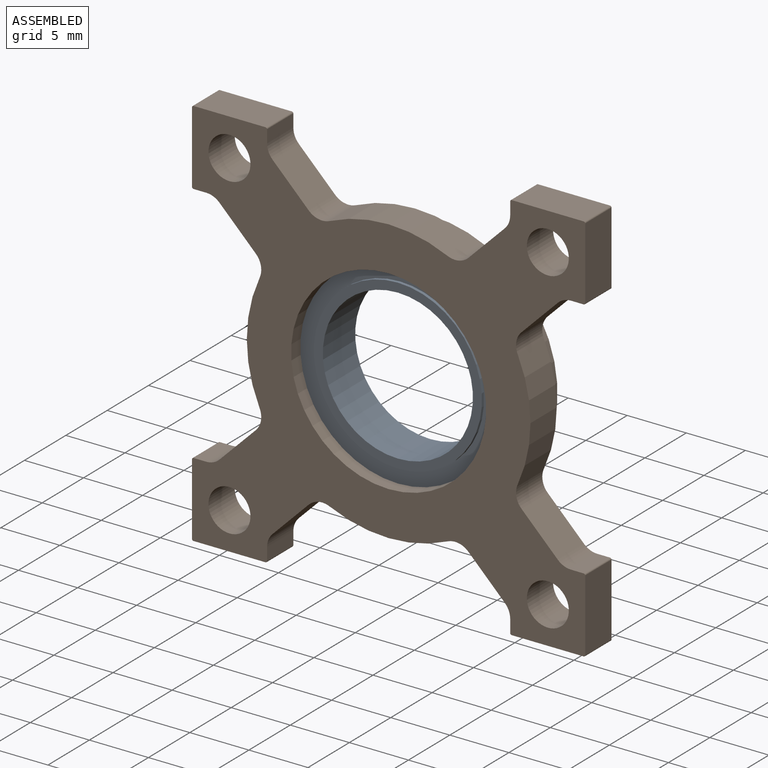
[diagram: assembled view]
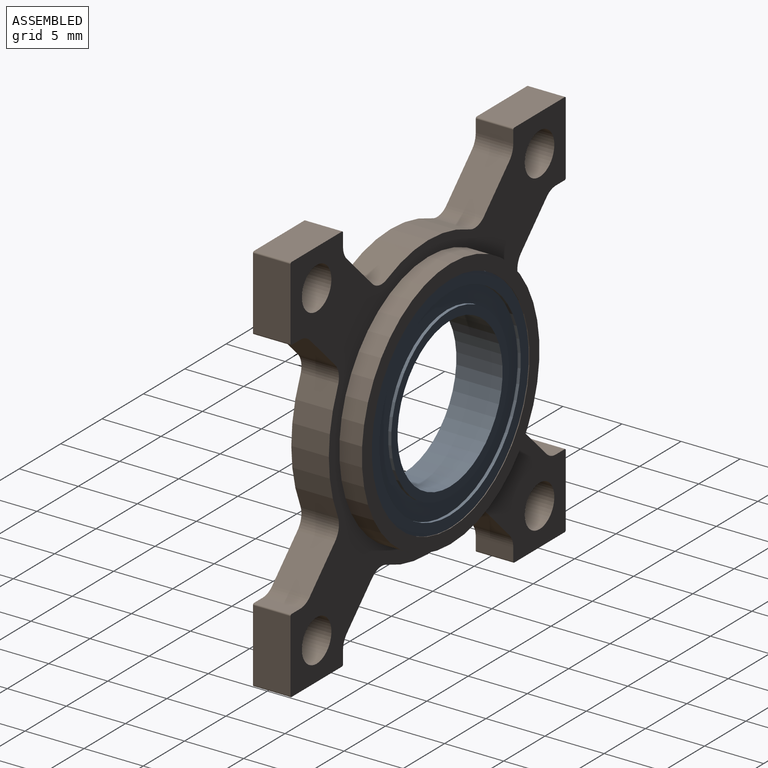
[diagram: assembled view, second angle]
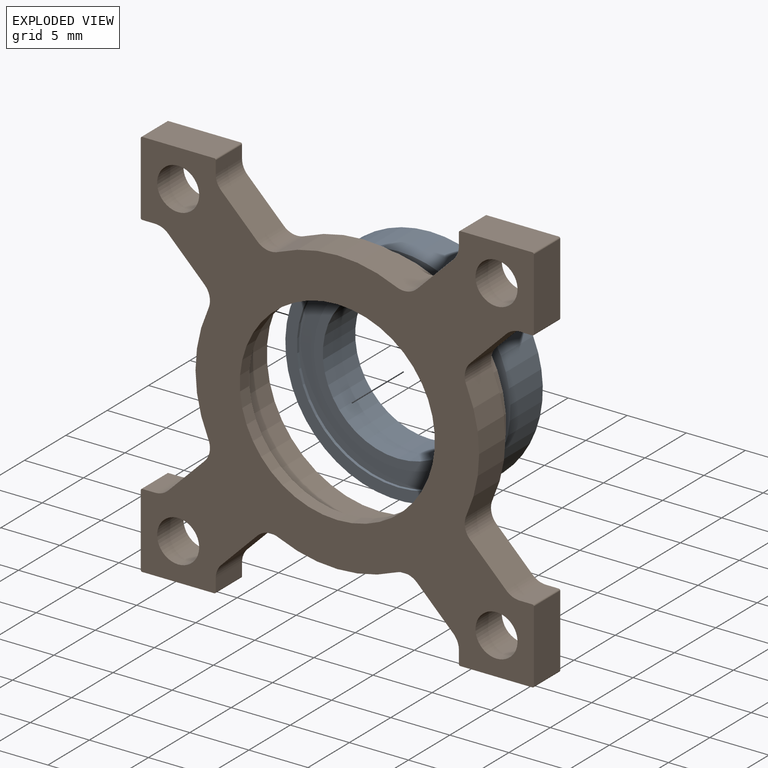
[diagram: exploded view]
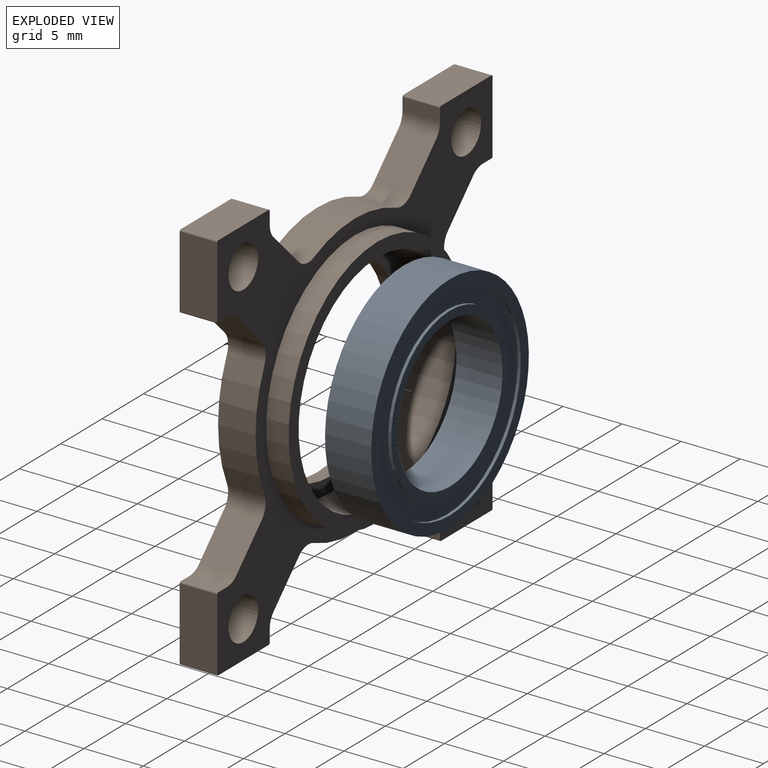
[diagram: exploded view, second angle]
ASSEMBLY  parts=2 mates=2
PART A: 12 faces, bbox 19.1x3.9x19.1 mm
  f0: cylinder r=7.11mm len=14.22mm, axis (0,-1,0), area 11.4mm2, adj f6,f11
  f1: cylinder r=8.55mm len=17.09mm, axis (0,-1,0), area 13.6mm2, adj f9,f11
  f2: cylinder r=7.11mm len=14.22mm, axis (0,1,0), area 11.4mm2, adj f7,f10
  f3: cylinder r=8.55mm len=17.09mm, axis (0,1,0), area 13.6mm2, adj f8,f10
  f4: cylinder r=6.35mm len=12.7mm, axis (0,-1,0), area 156.1mm2, adj f6,f7
  f5: cylinder r=9.53mm len=19.05mm, axis (0,-1,0), area 234.1mm2, adj f8,f9
  f6: plane 14.22x14.22mm, normal (0,-1,0), area 32.2mm2, adj f0,f4
  f7: plane 14.22x14.22mm, normal (0,1,0), area 32.2mm2, adj f2,f4
  f8: plane 19.05x19.05mm, normal (0,1,0), area 55.5mm2, adj f3,f5
  f9: plane 19.05x19.05mm, normal (0,-1,0), area 55.5mm2, adj f1,f5
  f10: plane 17.09x17.09mm, normal (0,1,0), area 70.6mm2, adj f2,f3
  f11: plane 17.09x17.09mm, normal (0,-1,0), area 70.6mm2, adj f0,f1
PART B: 67 faces, bbox 33.3x5.1x33.3 mm
  f0: cylinder r=8.26mm len=16.51mm, axis (0,1,0), area 58mm2, adj f38,f66
  f1: cylinder r=9.53mm len=19.05mm, axis (0,-1,0), area 237.1mm2, adj f65,f66
  f2: cylinder r=10.73mm len=21.46mm, axis (0,-1,0), area 128.5mm2, adj f10,f65
  f3: cylinder r=1.59mm len=3.18mm, axis (0,-1,0), area 6.1mm2, adj f10,f23,f24,f38
  f4: cylinder r=1.59mm len=3.18mm, axis (0,-1,0), area 6.1mm2, adj f10,f22,f23,f38
  f5: cylinder r=1.78mm len=3.56mm, axis (0,1,0), area 35.5mm2, adj f10,f38
  f6: cylinder r=1.78mm len=3.56mm, axis (0,1,0), area 35.5mm2, adj f10,f38
  f7: cylinder r=1.78mm len=3.56mm, axis (0,1,0), area 35.5mm2, adj f10,f38
  f8: cylinder r=1.78mm len=3.56mm, axis (0,1,0), area 35.5mm2, adj f10,f38
  f9: cylinder r=12mm len=9.95mm, axis (0,-1,0), area 32.6mm2, adj f10,f38,f61,f62
  f10: plane 33.27x33.27mm, normal (0,1,0), area 323.2mm2, adj f2,f3,f4,f5,f6,f7,f8,f9
  f11: plane 3.18x1.08mm, normal (1,0,0), area 3.4mm2, adj f10,f38,f48,f54
  f12: plane 6.1x3.18mm, normal (0,0,-1), area 19.4mm2, adj f10,f38,f48,f49
  f13: plane 6.1x3.18mm, normal (-1,0,0), area 19.4mm2, adj f10,f38,f49,f50
  f14: plane 3.18x1.08mm, normal (0,0,1), area 3.4mm2, adj f10,f38,f50,f53
  f15: plane 3.18x3.07mm, normal (-0.71,0,0.71), area 13.8mm2, adj f10,f38,f53,f63
  f16: cylinder r=12mm len=9.95mm, axis (0,-1,0), area 32.6mm2, adj f10,f38,f63,f64
  f17: plane 3.18x3.07mm, normal (-0.71,0,-0.71), area 13.8mm2, adj f10,f38,f52,f64
  f18: plane 3.18x1.08mm, normal (0,0,-1), area 3.4mm2, adj f10,f38,f39,f52
  f19: plane 6.1x3.18mm, normal (-1,0,0), area 19.4mm2, adj f10,f38,f39,f40
  f20: plane 6.1x3.18mm, normal (0,0,1), area 19.4mm2, adj f10,f38,f40,f43
  f21: plane 3.18x1.08mm, normal (1,0,0), area 3.4mm2, adj f10,f38,f43,f51
  f22: plane 3.18x3.07mm, normal (0.71,0,0.71), area 13.8mm2, adj f4,f10,f38,f51
  f23: cylinder r=12mm len=9.95mm, axis (0,-1,0), area 32.6mm2, adj f3,f4,f10,f38
  f24: plane 3.18x3.07mm, normal (-0.71,0,0.71), area 13.8mm2, adj f3,f10,f38,f58
  f25: plane 3.18x1.08mm, normal (-1,0,0), area 3.4mm2, adj f10,f38,f41,f58
  f26: plane 6.1x3.18mm, normal (0,0,1), area 19.4mm2, adj f10,f38,f41,f44
  f27: plane 6.1x3.18mm, normal (1,0,0), area 19.4mm2, adj f10,f38,f44,f45
  f28: plane 3.18x1.08mm, normal (0,0,-1), area 3.4mm2, adj f10,f38,f45,f57
  f29: plane 3.18x3.07mm, normal (0.71,0,-0.71), area 13.8mm2, adj f10,f38,f57,f59
  f30: cylinder r=12mm len=9.95mm, axis (0,-1,0), area 32.6mm2, adj f10,f38,f59,f60
  f31: plane 3.18x3.07mm, normal (0.71,0,0.71), area 13.8mm2, adj f10,f38,f56,f60
  f32: plane 3.18x1.08mm, normal (0,0,1), area 3.4mm2, adj f10,f38,f46,f56
  f33: plane 6.1x3.18mm, normal (1,0,0), area 19.4mm2, adj f10,f38,f46,f47
  f34: plane 6.1x3.18mm, normal (0,0,-1), area 19.4mm2, adj f10,f38,f42,f47
  f35: plane 3.18x1.08mm, normal (-1,0,0), area 3.4mm2, adj f10,f38,f42,f55
  f36: plane 3.18x3.07mm, normal (-0.71,0,-0.71), area 13.8mm2, adj f10,f38,f55,f62
  f37: plane 3.18x3.07mm, normal (0.71,0,-0.71), area 13.8mm2, adj f10,f38,f54,f61
  f38: plane 33.27x33.27mm, normal (0,-1,0), area 470.9mm2, adj f0,f3,f4,f5,f6,f7,f8,f9
  f39: cylinder r=0.13mm len=3.18mm, axis (0,-1,0), area 0.6mm2, adj f10,f18,f19,f38
  f40: cylinder r=0.13mm len=3.18mm, axis (0,1,0), area 0.6mm2, adj f10,f19,f20,f38
  f41: cylinder r=0.13mm len=3.18mm, axis (0,1,0), area 0.6mm2, adj f10,f25,f26,f38
  f42: cylinder r=0.13mm len=3.18mm, axis (0,1,0), area 0.6mm2, adj f10,f34,f35,f38
  f43: cylinder r=0.13mm len=3.18mm, axis (0,-1,0), area 0.6mm2, adj f10,f20,f21,f38
  f44: cylinder r=0.13mm len=3.18mm, axis (0,-1,0), area 0.6mm2, adj f10,f26,f27,f38
  f45: cylinder r=0.13mm len=3.18mm, axis (0,-1,0), area 0.6mm2, adj f10,f27,f28,f38
  f46: cylinder r=0.13mm len=3.18mm, axis (0,-1,0), area 0.6mm2, adj f10,f32,f33,f38
  f47: cylinder r=0.13mm len=3.18mm, axis (0,-1,0), area 0.6mm2, adj f10,f33,f34,f38
  f48: cylinder r=0.13mm len=3.18mm, axis (0,-1,0), area 0.6mm2, adj f10,f11,f12,f38
  f49: cylinder r=0.13mm len=3.18mm, axis (0,-1,0), area 0.6mm2, adj f10,f12,f13,f38
  f50: cylinder r=0.13mm len=3.18mm, axis (0,1,0), area 0.6mm2, adj f10,f13,f14,f38
  f51: cylinder r=1.59mm len=3.18mm, axis (0,-1,0), area 4mm2, adj f10,f21,f22,f38
  f52: cylinder r=1.59mm len=3.18mm, axis (0,-1,0), area 4mm2, adj f10,f17,f18,f38
  f53: cylinder r=1.59mm len=3.18mm, axis (0,-1,0), area 4mm2, adj f10,f14,f15,f38
  f54: cylinder r=1.59mm len=3.18mm, axis (0,-1,0), area 4mm2, adj f10,f11,f37,f38
  f55: cylinder r=1.59mm len=3.18mm, axis (0,-1,0), area 4mm2, adj f10,f35,f36,f38
  f56: cylinder r=1.59mm len=3.18mm, axis (0,-1,0), area 4mm2, adj f10,f31,f32,f38
  f57: cylinder r=1.59mm len=3.18mm, axis (0,-1,0), area 4mm2, adj f10,f28,f29,f38
  f58: cylinder r=1.59mm len=3.18mm, axis (0,-1,0), area 4mm2, adj f10,f24,f25,f38
  f59: cylinder r=1.59mm len=3.18mm, axis (0,-1,0), area 6.1mm2, adj f10,f29,f30,f38
  f60: cylinder r=1.59mm len=3.18mm, axis (0,-1,0), area 6.1mm2, adj f10,f30,f31,f38
  f61: cylinder r=1.59mm len=3.18mm, axis (0,-1,0), area 6.1mm2, adj f9,f10,f37,f38
  f62: cylinder r=1.59mm len=3.18mm, axis (0,-1,0), area 6.1mm2, adj f9,f10,f36,f38
  f63: cylinder r=1.59mm len=3.18mm, axis (0,-1,0), area 6.1mm2, adj f10,f15,f16,f38
  f64: cylinder r=1.59mm len=3.18mm, axis (0,-1,0), area 6.1mm2, adj f10,f16,f17,f38
  f65: plane 21.46x21.46mm, normal (0,1,0), area 76.8mm2, adj f1,f2
  f66: plane 19.05x19.05mm, normal (0,1,0), area 70.9mm2, adj f0,f1
PLACE A rot(axis=(0,1,0),0deg) t=(4.58,15.76,29.81)mm
PLACE B t=(4.58,14.64,29.81)mm
MATE fastened A.f0 <-> B.f0  axis (0,-1,0) through (4.58,16.01,29.81)mm
MATE fastened A.f0 <-> B.f0  axis (0,1,0) through (4.58,19.67,29.81)mm
